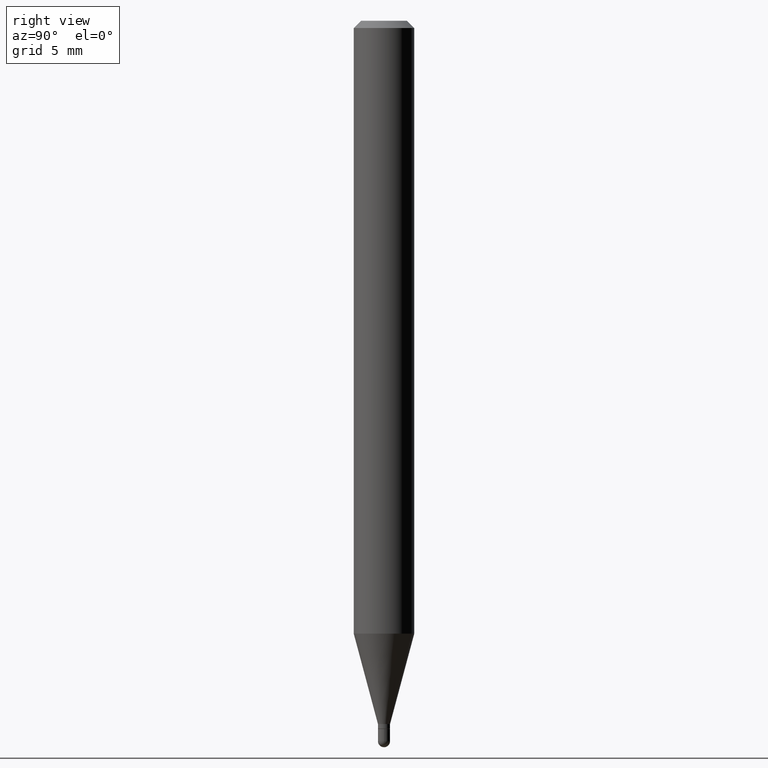
[diagram: clean part render]
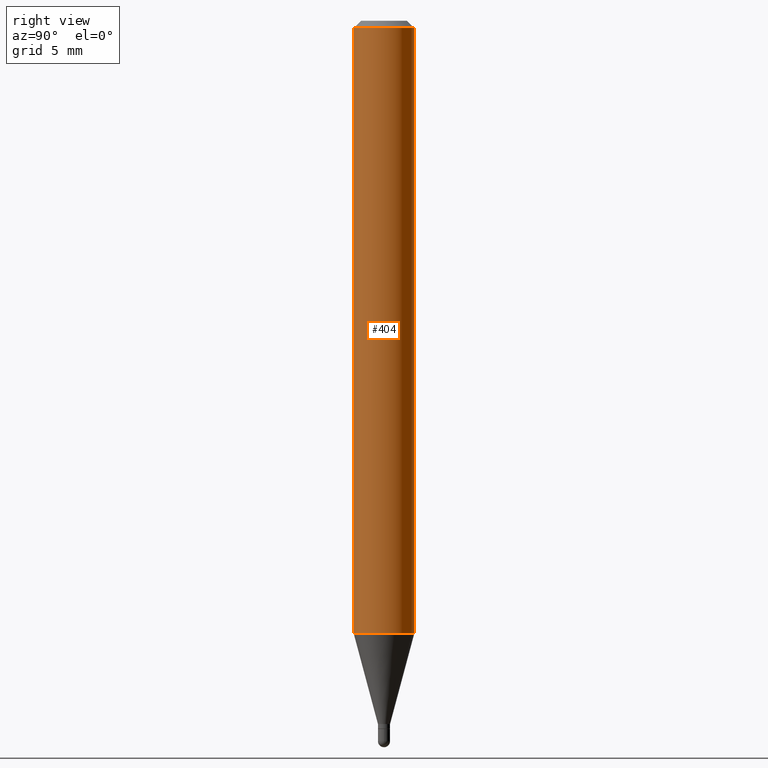
[diagram: same view with one face highlighted and labeled with its STEP entity id]
A machine part, right view. The second image highlights one B-rep face of the part: STEP entity #404.
In plain terms, the highlighted cylindrical surface (edge-blend (fillet) strip) has radius 1.5875 mm, axis along (-0, 0, 1).
Its self-contained STEP definition (entity closure, byte-faithful):
#21 = ORIENTED_EDGE ( 'NONE', *, *, #303, .T. ) ;
#33 = VECTOR ( 'NONE', #209, 39.37007874015748143 ) ;
#36 = CARTESIAN_POINT ( 'NONE',  ( 4.440892098500936776E-16, 0.06249999999999993755, -0.01500000000000022669 ) ) ;
#38 = CARTESIAN_POINT ( 'NONE',  ( 4.440892098500933817E-16, 0.06249999999999557992, -1.265397459621557141 ) ) ;
#43 = CARTESIAN_POINT ( 'NONE',  ( 3.668201294274861525E-31, -5.237224750657791359E-17, -0.01500000000000000812 ) ) ;
#47 = CARTESIAN_POINT ( 'NONE',  ( 4.440892098500625669E-16, 0.06250000000000000000, -2.182176979440745239E-16 ) ) ;
#83 = DIRECTION ( 'NONE',  ( -6.982962677686265922E-15, -1.000000000000000000, 4.370956789862821150E-15 ) ) ;
#140 = VERTEX_POINT ( 'NONE', #36 ) ;
#141 = CIRCLE ( 'NONE', #154, 0.06250000000000000000 ) ;
#154 = AXIS2_PLACEMENT_3D ( 'NONE', #43, #317, #165 ) ;
#156 = EDGE_CURVE ( 'NONE', #399, #447, #233, .T. ) ;
#165 = DIRECTION ( 'NONE',  ( -6.982962677686265922E-15, -1.000000000000000000, 3.483106191921935554E-15 ) ) ;
#188 = ORIENTED_EDGE ( 'NONE', *, *, #248, .F. ) ;
#209 = DIRECTION ( 'NONE',  ( -2.445467529516572820E-29, 3.491483167105192382E-15, 1.000000000000000000 ) ) ;
#216 = CARTESIAN_POINT ( 'NONE',  ( 0.000000000000000000, 0.000000000000000000, 0.000000000000000000 ) ) ;
#221 = AXIS2_PLACEMENT_3D ( 'NONE', #216, #509, #433 ) ;
#224 = ORIENTED_EDGE ( 'NONE', *, *, #156, .F. ) ;
#233 = LINE ( 'NONE', #505, #253 ) ;
#238 = EDGE_LOOP ( 'NONE', ( #21, #368, #188, #224 ) ) ;
#246 = LINE ( 'NONE', #47, #33 ) ;
#248 = EDGE_CURVE ( 'NONE', #447, #140, #141, .T. ) ;
#253 = VECTOR ( 'NONE', #346, 39.37007874015748143 ) ;
#257 = FACE_OUTER_BOUND ( 'NONE', #238, .T. ) ;
#301 = AXIS2_PLACEMENT_3D ( 'NONE', #472, #482, #83 ) ;
#303 = EDGE_CURVE ( 'NONE', #399, #334, #487, .T. ) ;
#317 = DIRECTION ( 'NONE',  ( -2.445467529516572820E-29, 3.491483167105192382E-15, 1.000000000000000000 ) ) ;
#334 = VERTEX_POINT ( 'NONE', #38 ) ;
#342 = EDGE_CURVE ( 'NONE', #334, #140, #246, .T. ) ;
#346 = DIRECTION ( 'NONE',  ( -2.445467529516572820E-29, 3.491483167105192382E-15, 1.000000000000000000 ) ) ;
#368 = ORIENTED_EDGE ( 'NONE', *, *, #342, .T. ) ;
#398 = CYLINDRICAL_SURFACE ( 'NONE', #221, 0.06250000000000000000 ) ;
#399 = VERTEX_POINT ( 'NONE', #441 ) ;
#404 = ADVANCED_FACE ( 'NONE', ( #257 ), #398, .T. ) ;
#427 = CARTESIAN_POINT ( 'NONE',  ( -4.364351673553912750E-16, -0.06250000000000005551, -0.01499999999999979128 ) ) ;
#433 = DIRECTION ( 'NONE',  ( -6.982962677686265922E-15, -1.000000000000000000, 3.491483167105192382E-15 ) ) ;
#441 = CARTESIAN_POINT ( 'NONE',  ( -4.364351673553607559E-16, -0.06250000000000442701, -1.265397459621556697 ) ) ;
#447 = VERTEX_POINT ( 'NONE', #427 ) ;
#472 = CARTESIAN_POINT ( 'NONE',  ( 3.094488399437275627E-29, -4.418113929966338123E-15, -1.265397459621556919 ) ) ;
#482 = DIRECTION ( 'NONE',  ( -2.445467529516572820E-29, 3.491483167105192382E-15, 1.000000000000000000 ) ) ;
#487 = CIRCLE ( 'NONE', #301, 0.06250000000000000000 ) ;
#505 = CARTESIAN_POINT ( 'NONE',  ( -4.364351673553916201E-16, -0.06250000000000000000, 2.182176979440745239E-16 ) ) ;
#509 = DIRECTION ( 'NONE',  ( -2.445467529516572820E-29, 3.491483167105192382E-15, 1.000000000000000000 ) ) ;